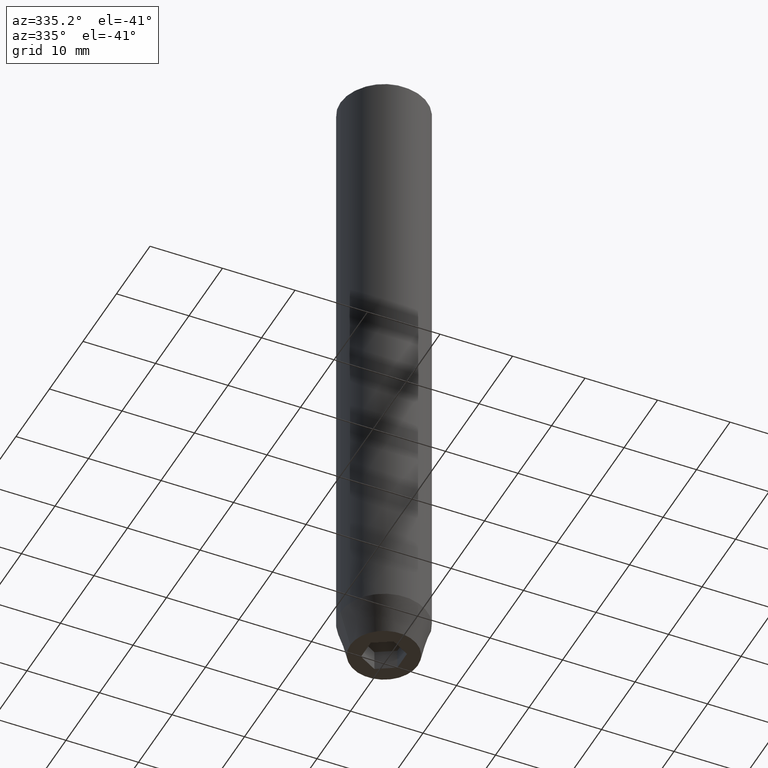
[diagram: clean part render]
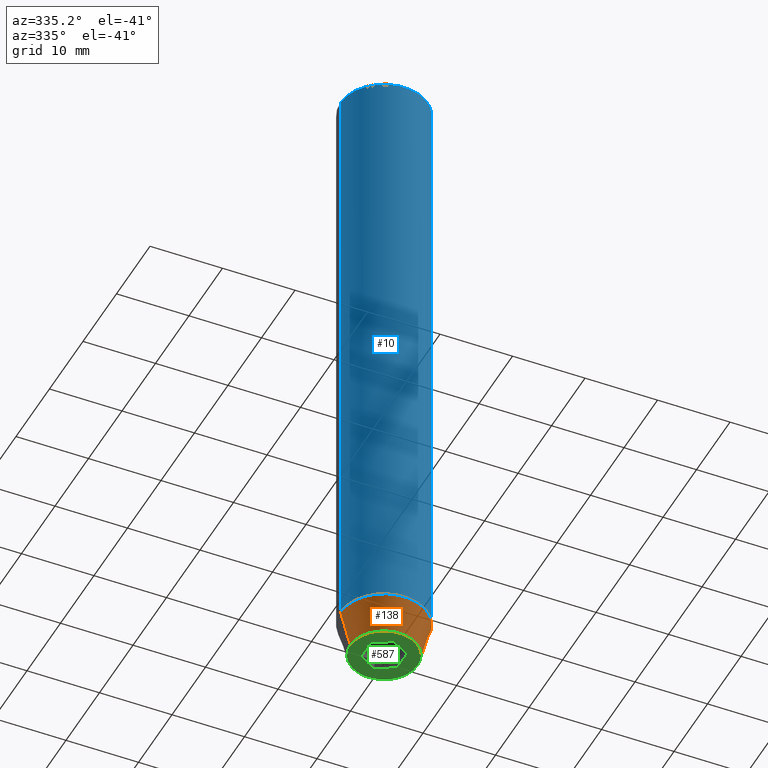
[diagram: same view with three faces highlighted in distinct colors, each labeled with its STEP entity id]
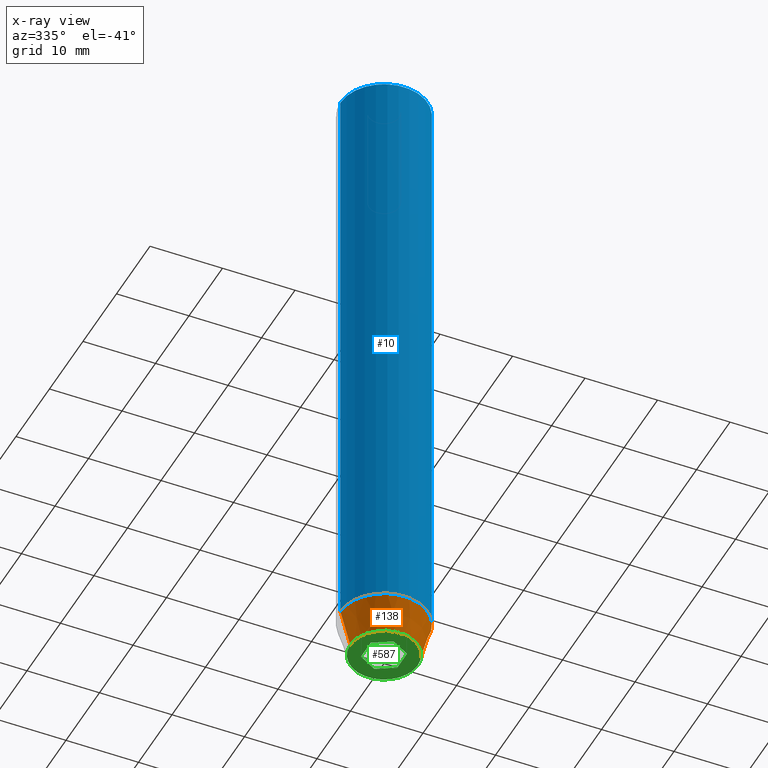
[diagram: x-ray of the same camera — body ghosted, the three highlighted faces saturated]
A machine part, auxiliary view with three faces highlighted in distinct colors.
The next image is the same camera in x-ray (body ghosted, the three faces saturated) — at least one of them is partly hidden behind the body in this view.
Their STEP definitions:

[orange] entity #138 — the highlighted conical surface has half-angle 15 deg.
#4 = CONICAL_SURFACE ( 'NONE', #380, 6.000000000000000000, 0.2617993877991502405 ) ;
#22 = AXIS2_PLACEMENT_3D ( 'NONE', #243, #23, #200 ) ;
#23 = DIRECTION ( 'NONE',  ( -0.000000000000000000, -0.000000000000000000, 1.000000000000000000 ) ) ;
#47 = ORIENTED_EDGE ( 'NONE', *, *, #414, .T. ) ;
#77 = AXIS2_PLACEMENT_3D ( 'NONE', #434, #257, #338 ) ;
#85 = VERTEX_POINT ( 'NONE', #220 ) ;
#90 = FACE_OUTER_BOUND ( 'NONE', #177, .T. ) ;
#125 = CIRCLE ( 'NONE', #77, 4.660254037844381081 ) ;
#129 = ORIENTED_EDGE ( 'NONE', *, *, #173, .F. ) ;
#138 = ADVANCED_FACE ( 'NONE', ( #90 ), #4, .T. ) ;
#148 = CARTESIAN_POINT ( 'NONE',  ( -6.000000000000000000, 7.347880794884119736E-16, -84.99999999999998579 ) ) ;
#159 = LINE ( 'NONE', #148, #425 ) ;
#173 = EDGE_CURVE ( 'NONE', #85, #439, #159, .T. ) ;
#177 = EDGE_LOOP ( 'NONE', ( #129, #47, #436, #228 ) ) ;
#185 = CARTESIAN_POINT ( 'NONE',  ( 6.000000000000000000, 0.000000000000000000, -84.99999999999998579 ) ) ;
#192 = DIRECTION ( 'NONE',  ( -0.2588190451025214611, 3.169619151431774186E-17, 0.9659258262890679791 ) ) ;
#200 = DIRECTION ( 'NONE',  ( 1.000000000000000000, 0.000000000000000000, 0.000000000000000000 ) ) ;
#220 = CARTESIAN_POINT ( 'NONE',  ( -4.660254037844381081, 6.527522992771884330E-16, -90.00000000000000000 ) ) ;
#228 = ORIENTED_EDGE ( 'NONE', *, *, #309, .F. ) ;
#243 = CARTESIAN_POINT ( 'NONE',  ( 0.000000000000000000, 0.000000000000000000, -84.99999999999998579 ) ) ;
#257 = DIRECTION ( 'NONE',  ( -0.000000000000000000, -0.000000000000000000, 1.000000000000000000 ) ) ;
#259 = DIRECTION ( 'NONE',  ( 0.2588190451025214611, 0.000000000000000000, 0.9659258262890679791 ) ) ;
#272 = DIRECTION ( 'NONE',  ( -0.000000000000000000, -0.000000000000000000, 1.000000000000000000 ) ) ;
#275 = VECTOR ( 'NONE', #259, 1000.000000000000114 ) ;
#303 = CARTESIAN_POINT ( 'NONE',  ( 4.660254037844381081, 0.000000000000000000, -90.00000000000000000 ) ) ;
#309 = EDGE_CURVE ( 'NONE', #439, #550, #535, .T. ) ;
#316 = DIRECTION ( 'NONE',  ( 1.000000000000000000, 0.000000000000000000, 0.000000000000000000 ) ) ;
#318 = EDGE_CURVE ( 'NONE', #392, #550, #336, .T. ) ;
#336 = LINE ( 'NONE', #522, #275 ) ;
#338 = DIRECTION ( 'NONE',  ( 1.000000000000000000, 0.000000000000000000, 0.000000000000000000 ) ) ;
#343 = CARTESIAN_POINT ( 'NONE',  ( -6.000000000000000000, 7.347880794884119736E-16, -84.99999999999998579 ) ) ;
#380 = AXIS2_PLACEMENT_3D ( 'NONE', #405, #272, #316 ) ;
#392 = VERTEX_POINT ( 'NONE', #303 ) ;
#405 = CARTESIAN_POINT ( 'NONE',  ( 0.000000000000000000, 0.000000000000000000, -84.99999999999998579 ) ) ;
#414 = EDGE_CURVE ( 'NONE', #85, #392, #125, .T. ) ;
#425 = VECTOR ( 'NONE', #192, 1000.000000000000114 ) ;
#434 = CARTESIAN_POINT ( 'NONE',  ( 0.000000000000000000, 0.000000000000000000, -90.00000000000000000 ) ) ;
#436 = ORIENTED_EDGE ( 'NONE', *, *, #318, .T. ) ;
#439 = VERTEX_POINT ( 'NONE', #343 ) ;
#522 = CARTESIAN_POINT ( 'NONE',  ( 6.000000000000000000, 0.000000000000000000, -84.99999999999998579 ) ) ;
#535 = CIRCLE ( 'NONE', #22, 6.000000000000000000 ) ;
#550 = VERTEX_POINT ( 'NONE', #185 ) ;

[blue] entity #10 — the highlighted cylindrical surface (partial cylindrical patch) has radius 6 mm, axis along (-0, -0, 1).
#10 = ADVANCED_FACE ( 'NONE', ( #306 ), #81, .T. ) ;
#22 = AXIS2_PLACEMENT_3D ( 'NONE', #243, #23, #200 ) ;
#23 = DIRECTION ( 'NONE',  ( -0.000000000000000000, -0.000000000000000000, 1.000000000000000000 ) ) ;
#70 = EDGE_CURVE ( 'NONE', #439, #410, #87, .T. ) ;
#73 = DIRECTION ( 'NONE',  ( -0.000000000000000000, -0.000000000000000000, 1.000000000000000000 ) ) ;
#81 = CYLINDRICAL_SURFACE ( 'NONE', #555, 6.000000000000000000 ) ;
#87 = LINE ( 'NONE', #364, #155 ) ;
#103 = CIRCLE ( 'NONE', #216, 6.000000000000000000 ) ;
#111 = VECTOR ( 'NONE', #73, 1000.000000000000000 ) ;
#135 = ORIENTED_EDGE ( 'NONE', *, *, #309, .T. ) ;
#155 = VECTOR ( 'NONE', #549, 1000.000000000000000 ) ;
#166 = DIRECTION ( 'NONE',  ( 1.000000000000000000, 0.000000000000000000, 0.000000000000000000 ) ) ;
#168 = EDGE_LOOP ( 'NONE', ( #517, #135, #317, #395 ) ) ;
#185 = CARTESIAN_POINT ( 'NONE',  ( 6.000000000000000000, 0.000000000000000000, -84.99999999999998579 ) ) ;
#200 = DIRECTION ( 'NONE',  ( 1.000000000000000000, 0.000000000000000000, 0.000000000000000000 ) ) ;
#216 = AXIS2_PLACEMENT_3D ( 'NONE', #350, #570, #166 ) ;
#243 = CARTESIAN_POINT ( 'NONE',  ( 0.000000000000000000, 0.000000000000000000, -84.99999999999998579 ) ) ;
#261 = DIRECTION ( 'NONE',  ( 1.000000000000000000, 0.000000000000000000, 0.000000000000000000 ) ) ;
#262 = LINE ( 'NONE', #440, #111 ) ;
#306 = FACE_OUTER_BOUND ( 'NONE', #168, .T. ) ;
#309 = EDGE_CURVE ( 'NONE', #439, #550, #535, .T. ) ;
#317 = ORIENTED_EDGE ( 'NONE', *, *, #349, .T. ) ;
#328 = VERTEX_POINT ( 'NONE', #478 ) ;
#343 = CARTESIAN_POINT ( 'NONE',  ( -6.000000000000000000, 7.347880794884119736E-16, -84.99999999999998579 ) ) ;
#349 = EDGE_CURVE ( 'NONE', #550, #328, #262, .T. ) ;
#350 = CARTESIAN_POINT ( 'NONE',  ( 0.000000000000000000, 0.000000000000000000, -0.4999999999999891753 ) ) ;
#364 = CARTESIAN_POINT ( 'NONE',  ( -6.000000000000000000, 7.347880794884119736E-16, 0.000000000000000000 ) ) ;
#385 = EDGE_CURVE ( 'NONE', #328, #410, #103, .T. ) ;
#395 = ORIENTED_EDGE ( 'NONE', *, *, #385, .T. ) ;
#410 = VERTEX_POINT ( 'NONE', #441 ) ;
#439 = VERTEX_POINT ( 'NONE', #343 ) ;
#440 = CARTESIAN_POINT ( 'NONE',  ( 6.000000000000000000, 0.000000000000000000, 0.000000000000000000 ) ) ;
#441 = CARTESIAN_POINT ( 'NONE',  ( -6.000000000000000000, 7.347880794884119736E-16, -0.4999999999999891753 ) ) ;
#478 = CARTESIAN_POINT ( 'NONE',  ( 6.000000000000000000, 0.000000000000000000, -0.4999999999999891753 ) ) ;
#489 = DIRECTION ( 'NONE',  ( -0.000000000000000000, -0.000000000000000000, 1.000000000000000000 ) ) ;
#517 = ORIENTED_EDGE ( 'NONE', *, *, #70, .F. ) ;
#535 = CIRCLE ( 'NONE', #22, 6.000000000000000000 ) ;
#549 = DIRECTION ( 'NONE',  ( -0.000000000000000000, -0.000000000000000000, 1.000000000000000000 ) ) ;
#550 = VERTEX_POINT ( 'NONE', #185 ) ;
#555 = AXIS2_PLACEMENT_3D ( 'NONE', #585, #489, #261 ) ;
#570 = DIRECTION ( 'NONE',  ( 0.000000000000000000, 0.000000000000000000, -1.000000000000000000 ) ) ;
#585 = CARTESIAN_POINT ( 'NONE',  ( 0.000000000000000000, 0.000000000000000000, 0.000000000000000000 ) ) ;

[green] entity #587 — the highlighted planar face has unit normal (0, 0, -1).
#6 = CARTESIAN_POINT ( 'NONE',  ( 1.250000000000000222, 2.165063509461096825, -90.00000000000000000 ) ) ;
#26 = EDGE_CURVE ( 'NONE', #430, #520, #308, .T. ) ;
#31 = CARTESIAN_POINT ( 'NONE',  ( -1.250000000000000444, 2.165063509461097269, -90.00000000000000000 ) ) ;
#49 = LINE ( 'NONE', #544, #371 ) ;
#58 = EDGE_CURVE ( 'NONE', #390, #61, #49, .T. ) ;
#61 = VERTEX_POINT ( 'NONE', #368 ) ;
#69 = VERTEX_POINT ( 'NONE', #230 ) ;
#77 = AXIS2_PLACEMENT_3D ( 'NONE', #434, #257, #338 ) ;
#85 = VERTEX_POINT ( 'NONE', #220 ) ;
#86 = FACE_OUTER_BOUND ( 'NONE', #536, .T. ) ;
#97 = CARTESIAN_POINT ( 'NONE',  ( 0.000000000000000000, -2.886751345948128211, -90.00000000000000000 ) ) ;
#124 = DIRECTION ( 'NONE',  ( -0.8660254037844387076, 0.4999999999999998890, 0.000000000000000000 ) ) ;
#125 = CIRCLE ( 'NONE', #77, 4.660254037844381081 ) ;
#127 = ORIENTED_EDGE ( 'NONE', *, *, #414, .F. ) ;
#131 = EDGE_CURVE ( 'NONE', #520, #69, #551, .T. ) ;
#145 = ORIENTED_EDGE ( 'NONE', *, *, #452, .F. ) ;
#161 = CIRCLE ( 'NONE', #198, 4.660254037844381081 ) ;
#163 = CARTESIAN_POINT ( 'NONE',  ( 1.249999999999999778, -2.165063509461096380, -90.00000000000000000 ) ) ;
#183 = PLANE ( 'NONE',  #266 ) ;
#193 = ORIENTED_EDGE ( 'NONE', *, *, #491, .F. ) ;
#195 = ORIENTED_EDGE ( 'NONE', *, *, #408, .F. ) ;
#198 = AXIS2_PLACEMENT_3D ( 'NONE', #282, #247, #464 ) ;
#210 = DIRECTION ( 'NONE',  ( -0.8660254037844387076, -0.5000000000000001110, 0.000000000000000000 ) ) ;
#218 = VECTOR ( 'NONE', #124, 1000.000000000000114 ) ;
#219 = DIRECTION ( 'NONE',  ( -1.000000000000000000, 0.000000000000000000, -0.000000000000000000 ) ) ;
#220 = CARTESIAN_POINT ( 'NONE',  ( -4.660254037844381081, 6.527522992771884330E-16, -90.00000000000000000 ) ) ;
#224 = CARTESIAN_POINT ( 'NONE',  ( 2.500000000000000000, 0.000000000000000000, -90.00000000000000000 ) ) ;
#230 = CARTESIAN_POINT ( 'NONE',  ( 2.500000000000000000, -1.443375672974064106, -90.00000000000000000 ) ) ;
#247 = DIRECTION ( 'NONE',  ( -0.000000000000000000, -0.000000000000000000, 1.000000000000000000 ) ) ;
#255 = VECTOR ( 'NONE', #210, 999.9999999999998863 ) ;
#257 = DIRECTION ( 'NONE',  ( -0.000000000000000000, -0.000000000000000000, 1.000000000000000000 ) ) ;
#266 = AXIS2_PLACEMENT_3D ( 'NONE', #399, #451, #219 ) ;
#269 = EDGE_CURVE ( 'NONE', #392, #85, #161, .T. ) ;
#270 = CARTESIAN_POINT ( 'NONE',  ( 2.500000000000000000, 1.443375672974064328, -90.00000000000000000 ) ) ;
#274 = FACE_BOUND ( 'NONE', #409, .T. ) ;
#282 = CARTESIAN_POINT ( 'NONE',  ( 0.000000000000000000, 0.000000000000000000, -90.00000000000000000 ) ) ;
#300 = VECTOR ( 'NONE', #311, 1000.000000000000000 ) ;
#303 = CARTESIAN_POINT ( 'NONE',  ( 4.660254037844381081, 0.000000000000000000, -90.00000000000000000 ) ) ;
#308 = LINE ( 'NONE', #6, #546 ) ;
#311 = DIRECTION ( 'NONE',  ( 0.000000000000000000, -1.000000000000000000, 0.000000000000000000 ) ) ;
#338 = DIRECTION ( 'NONE',  ( 1.000000000000000000, 0.000000000000000000, 0.000000000000000000 ) ) ;
#347 = DIRECTION ( 'NONE',  ( 0.8660254037844385966, 0.5000000000000001110, 0.000000000000000000 ) ) ;
#351 = LINE ( 'NONE', #31, #446 ) ;
#368 = CARTESIAN_POINT ( 'NONE',  ( -2.500000000000000444, 1.443375672974064772, -90.00000000000000000 ) ) ;
#371 = VECTOR ( 'NONE', #404, 1000.000000000000000 ) ;
#390 = VERTEX_POINT ( 'NONE', #580 ) ;
#392 = VERTEX_POINT ( 'NONE', #303 ) ;
#396 = LINE ( 'NONE', #577, #218 ) ;
#397 = CARTESIAN_POINT ( 'NONE',  ( -2.168404344971008868E-16, 2.886751345948129543, -90.00000000000000000 ) ) ;
#399 = CARTESIAN_POINT ( 'NONE',  ( 0.000000000000000000, 4.660254037844381081, -90.00000000000000000 ) ) ;
#404 = DIRECTION ( 'NONE',  ( 0.000000000000000000, 1.000000000000000000, 0.000000000000000000 ) ) ;
#408 = EDGE_CURVE ( 'NONE', #69, #582, #533, .T. ) ;
#409 = EDGE_LOOP ( 'NONE', ( #145, #479, #193, #195, #471, #507 ) ) ;
#414 = EDGE_CURVE ( 'NONE', #85, #392, #125, .T. ) ;
#422 = ORIENTED_EDGE ( 'NONE', *, *, #269, .F. ) ;
#430 = VERTEX_POINT ( 'NONE', #397 ) ;
#434 = CARTESIAN_POINT ( 'NONE',  ( 0.000000000000000000, 0.000000000000000000, -90.00000000000000000 ) ) ;
#446 = VECTOR ( 'NONE', #347, 1000.000000000000000 ) ;
#451 = DIRECTION ( 'NONE',  ( 0.000000000000000000, 0.000000000000000000, -1.000000000000000000 ) ) ;
#452 = EDGE_CURVE ( 'NONE', #61, #430, #351, .T. ) ;
#464 = DIRECTION ( 'NONE',  ( 1.000000000000000000, 0.000000000000000000, 0.000000000000000000 ) ) ;
#471 = ORIENTED_EDGE ( 'NONE', *, *, #131, .F. ) ;
#479 = ORIENTED_EDGE ( 'NONE', *, *, #58, .F. ) ;
#491 = EDGE_CURVE ( 'NONE', #582, #390, #396, .T. ) ;
#493 = DIRECTION ( 'NONE',  ( 0.8660254037844385966, -0.5000000000000001110, 0.000000000000000000 ) ) ;
#507 = ORIENTED_EDGE ( 'NONE', *, *, #26, .F. ) ;
#520 = VERTEX_POINT ( 'NONE', #270 ) ;
#533 = LINE ( 'NONE', #163, #255 ) ;
#536 = EDGE_LOOP ( 'NONE', ( #422, #127 ) ) ;
#544 = CARTESIAN_POINT ( 'NONE',  ( -2.500000000000000444, 0.000000000000000000, -90.00000000000000000 ) ) ;
#546 = VECTOR ( 'NONE', #493, 1000.000000000000000 ) ;
#551 = LINE ( 'NONE', #224, #300 ) ;
#577 = CARTESIAN_POINT ( 'NONE',  ( -1.249999999999999556, -2.165063509461096825, -90.00000000000000000 ) ) ;
#580 = CARTESIAN_POINT ( 'NONE',  ( -2.500000000000000444, -1.443375672974064328, -90.00000000000000000 ) ) ;
#582 = VERTEX_POINT ( 'NONE', #97 ) ;
#587 = ADVANCED_FACE ( 'NONE', ( #274, #86 ), #183, .T. ) ;